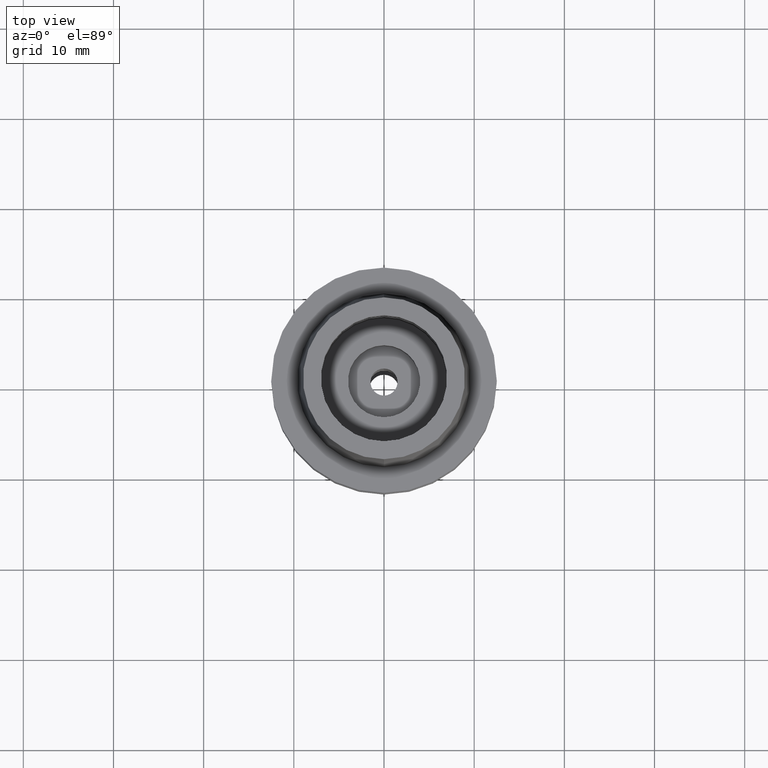
[diagram: clean part render]
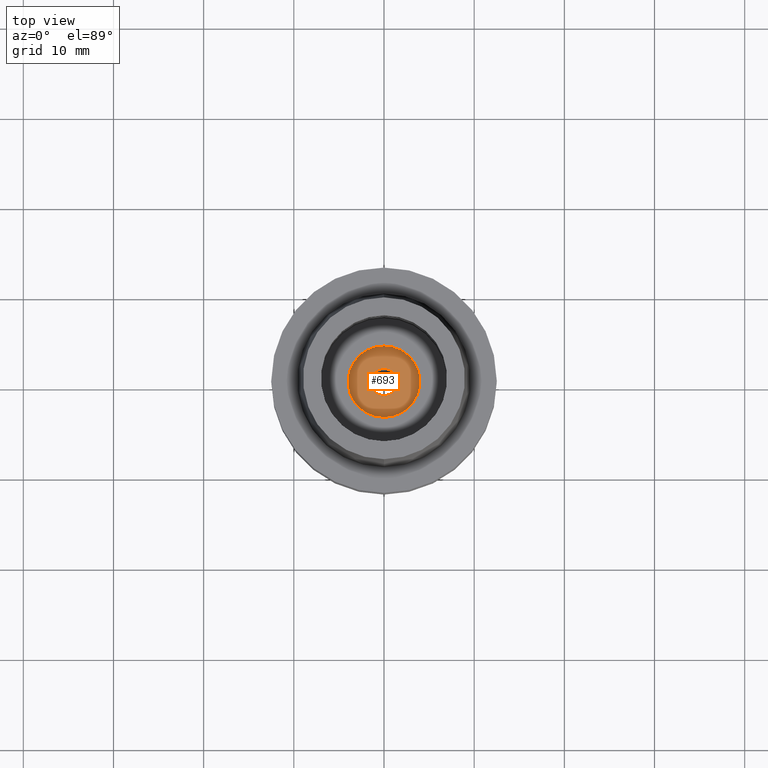
[diagram: same view with one face highlighted and labeled with its STEP entity id]
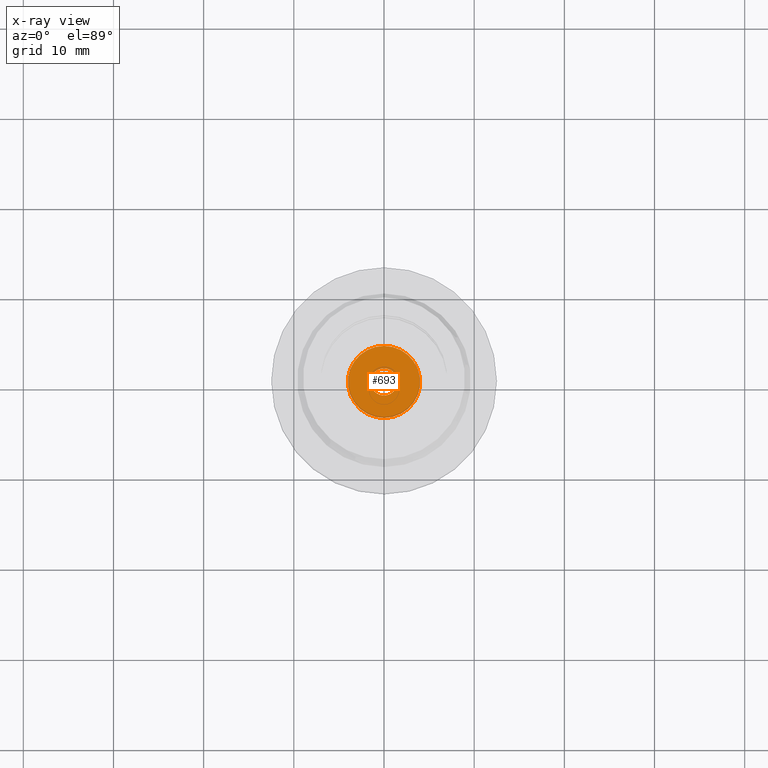
[diagram: x-ray of the same camera — body ghosted, the highlighted face saturated]
A machine part, top view. The second image highlights one B-rep face of the part: STEP entity #693.
The next image is the same camera in x-ray: the body ghosted, the highlighted face saturated — about 0% of this face is hidden behind the body in this view.
In plain terms, the highlighted planar face has unit normal (0, 0, 1).
Its self-contained STEP definition (entity closure, byte-faithful):
#20 = EDGE_CURVE ( 'NONE', #465, #2017, #1558, .T. ) ;
#34 = CIRCLE ( 'NONE', #1907, 1.500000000000000000 ) ;
#159 = EDGE_LOOP ( 'NONE', ( #887, #1093 ) ) ;
#197 = EDGE_CURVE ( 'NONE', #2607, #879, #1692, .T. ) ;
#344 = CARTESIAN_POINT ( 'NONE',  ( 0.0000000000000000000, 1.500000000000000000, -10.94999999999999929 ) ) ;
#363 = PLANE ( 'NONE',  #1473 ) ;
#465 = VERTEX_POINT ( 'NONE', #1160 ) ;
#584 = CARTESIAN_POINT ( 'NONE',  ( 0.0000000000000000000, 0.0000000000000000000, -10.94999999999999929 ) ) ;
#693 = ADVANCED_FACE ( 'NONE', ( #2471, #829 ), #363, .T. ) ;
#829 = FACE_BOUND ( 'NONE', #159, .T. ) ;
#879 = VERTEX_POINT ( 'NONE', #1720 ) ;
#887 = ORIENTED_EDGE ( 'NONE', *, *, #197, .F. ) ;
#897 = DIRECTION ( 'NONE',  ( 0.0000000000000000000, 0.0000000000000000000, 1.000000000000000000 ) ) ;
#944 = ORIENTED_EDGE ( 'NONE', *, *, #20, .F. ) ;
#981 = CARTESIAN_POINT ( 'NONE',  ( 0.0000000000000000000, 0.0000000000000000000, -10.94999999999999929 ) ) ;
#1092 = EDGE_CURVE ( 'NONE', #879, #2607, #34, .T. ) ;
#1093 = ORIENTED_EDGE ( 'NONE', *, *, #1092, .F. ) ;
#1104 = CARTESIAN_POINT ( 'NONE',  ( 0.0000000000000000000, 0.0000000000000000000, -10.94999999999999929 ) ) ;
#1118 = EDGE_LOOP ( 'NONE', ( #1971, #944 ) ) ;
#1160 = CARTESIAN_POINT ( 'NONE',  ( 0.0000000000000000000, -4.000000000000000000, -10.94999999999999929 ) ) ;
#1359 = DIRECTION ( 'NONE',  ( 0.0000000000000000000, 1.000000000000000000, 0.0000000000000000000 ) ) ;
#1411 = AXIS2_PLACEMENT_3D ( 'NONE', #981, #1791, #1359 ) ;
#1414 = DIRECTION ( 'NONE',  ( 0.0000000000000000000, -1.000000000000000000, 0.0000000000000000000 ) ) ;
#1473 = AXIS2_PLACEMENT_3D ( 'NONE', #1809, #1655, #1866 ) ;
#1558 = CIRCLE ( 'NONE', #1724, 4.000000000000000000 ) ;
#1650 = AXIS2_PLACEMENT_3D ( 'NONE', #1104, #897, #2353 ) ;
#1655 = DIRECTION ( 'NONE',  ( 0.0000000000000000000, 0.0000000000000000000, 1.000000000000000000 ) ) ;
#1692 = CIRCLE ( 'NONE', #1650, 1.500000000000000000 ) ;
#1720 = CARTESIAN_POINT ( 'NONE',  ( 0.0000000000000000000, -1.500000000000000000, -10.94999999999999929 ) ) ;
#1724 = AXIS2_PLACEMENT_3D ( 'NONE', #584, #2227, #1414 ) ;
#1791 = DIRECTION ( 'NONE',  ( 0.0000000000000000000, 0.0000000000000000000, -1.000000000000000000 ) ) ;
#1809 = CARTESIAN_POINT ( 'NONE',  ( 0.0000000000000000000, 0.0000000000000000000, -10.94999999999999929 ) ) ;
#1811 = CARTESIAN_POINT ( 'NONE',  ( 0.0000000000000000000, 4.000000000000000000, -10.94999999999999929 ) ) ;
#1866 = DIRECTION ( 'NONE',  ( 1.000000000000000000, 0.0000000000000000000, 0.0000000000000000000 ) ) ;
#1907 = AXIS2_PLACEMENT_3D ( 'NONE', #2397, #1997, #2370 ) ;
#1971 = ORIENTED_EDGE ( 'NONE', *, *, #2474, .F. ) ;
#1997 = DIRECTION ( 'NONE',  ( 0.0000000000000000000, 0.0000000000000000000, 1.000000000000000000 ) ) ;
#2015 = CIRCLE ( 'NONE', #1411, 4.000000000000000000 ) ;
#2017 = VERTEX_POINT ( 'NONE', #1811 ) ;
#2227 = DIRECTION ( 'NONE',  ( 0.0000000000000000000, 0.0000000000000000000, -1.000000000000000000 ) ) ;
#2353 = DIRECTION ( 'NONE',  ( 0.0000000000000000000, 1.000000000000000000, 0.0000000000000000000 ) ) ;
#2370 = DIRECTION ( 'NONE',  ( 0.0000000000000000000, -1.000000000000000000, 0.0000000000000000000 ) ) ;
#2397 = CARTESIAN_POINT ( 'NONE',  ( 0.0000000000000000000, 0.0000000000000000000, -10.94999999999999929 ) ) ;
#2471 = FACE_OUTER_BOUND ( 'NONE', #1118, .T. ) ;
#2474 = EDGE_CURVE ( 'NONE', #2017, #465, #2015, .T. ) ;
#2607 = VERTEX_POINT ( 'NONE', #344 ) ;